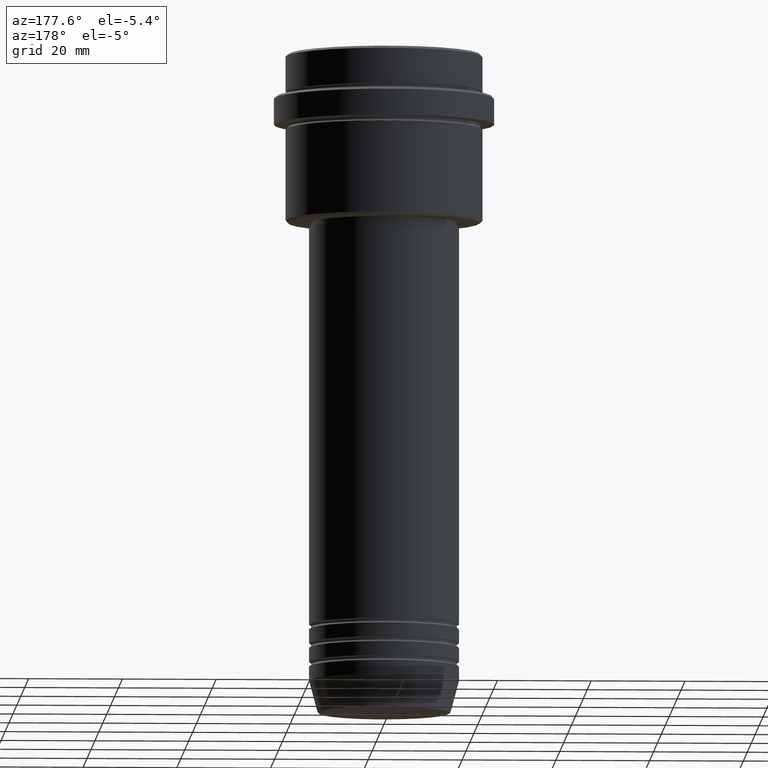
[diagram: clean part render]
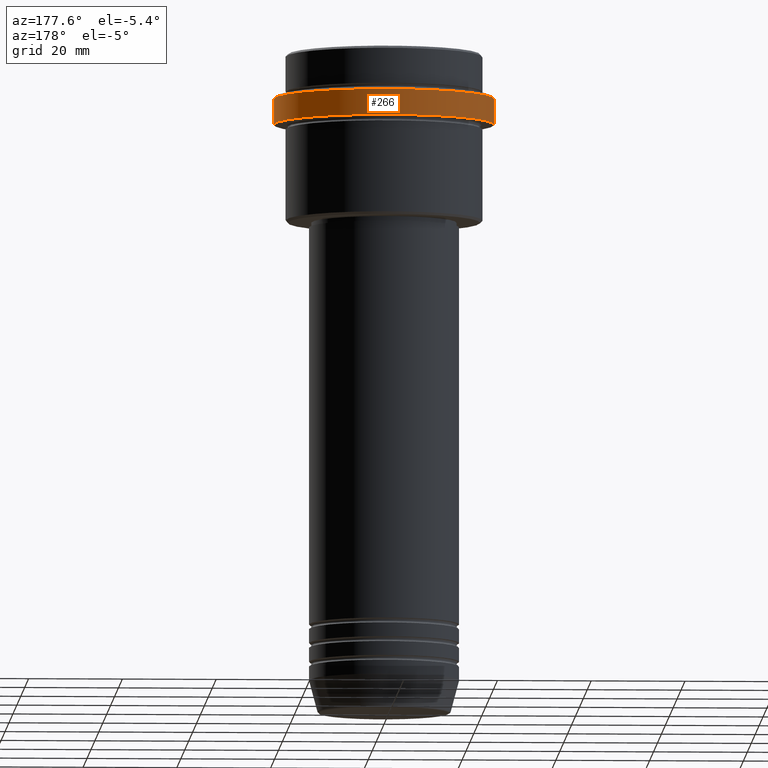
[diagram: same view with one face highlighted and labeled with its STEP entity id]
A machine part, auxiliary view. The second image highlights one B-rep face of the part: STEP entity #266.
In plain terms, the highlighted cylindrical surface (partial cylindrical patch) has radius 23.5 mm, axis along (-0, -0, 1).
Its self-contained STEP definition (entity closure, byte-faithful):
#5 = CARTESIAN_POINT ( 'NONE',  ( -23.50000000000000000, 2.877919977996280320E-15, -9.499999999999985789 ) ) ;
#19 = DIRECTION ( 'NONE',  ( 1.000000000000000000, 0.000000000000000000, 0.000000000000000000 ) ) ;
#20 = ORIENTED_EDGE ( 'NONE', *, *, #359, .T. ) ;
#70 = CIRCLE ( 'NONE', #1151, 23.50000000000000355 ) ;
#125 = DIRECTION ( 'NONE',  ( -0.000000000000000000, -0.000000000000000000, 1.000000000000000000 ) ) ;
#140 = DIRECTION ( 'NONE',  ( -0.000000000000000000, -0.000000000000000000, 1.000000000000000000 ) ) ;
#151 = CARTESIAN_POINT ( 'NONE',  ( 23.50000000000000000, 0.000000000000000000, 0.000000000000000000 ) ) ;
#210 = CIRCLE ( 'NONE', #516, 23.50000000000000000 ) ;
#266 = ADVANCED_FACE ( 'NONE', ( #1286 ), #1293, .T. ) ;
#338 = ORIENTED_EDGE ( 'NONE', *, *, #1224, .T. ) ;
#359 = EDGE_CURVE ( 'NONE', #1378, #1219, #1215, .T. ) ;
#389 = DIRECTION ( 'NONE',  ( 1.000000000000000000, 0.000000000000000000, 0.000000000000000000 ) ) ;
#516 = AXIS2_PLACEMENT_3D ( 'NONE', #896, #552, #1321 ) ;
#552 = DIRECTION ( 'NONE',  ( 0.000000000000000000, 0.000000000000000000, -1.000000000000000000 ) ) ;
#631 = VECTOR ( 'NONE', #140, 1000.000000000000000 ) ;
#658 = VECTOR ( 'NONE', #125, 1000.000000000000000 ) ;
#774 = VERTEX_POINT ( 'NONE', #864 ) ;
#864 = CARTESIAN_POINT ( 'NONE',  ( 23.50000000000000355, 0.000000000000000000, -15.00000000000000000 ) ) ;
#881 = EDGE_CURVE ( 'NONE', #774, #1378, #70, .T. ) ;
#896 = CARTESIAN_POINT ( 'NONE',  ( 0.000000000000000000, 0.000000000000000000, -9.499999999999985789 ) ) ;
#954 = DIRECTION ( 'NONE',  ( -0.000000000000000000, -0.000000000000000000, 1.000000000000000000 ) ) ;
#1007 = CARTESIAN_POINT ( 'NONE',  ( 0.000000000000000000, 0.000000000000000000, -15.00000000000000000 ) ) ;
#1017 = DIRECTION ( 'NONE',  ( -0.000000000000000000, -0.000000000000000000, 1.000000000000000000 ) ) ;
#1037 = CARTESIAN_POINT ( 'NONE',  ( 23.50000000000000000, 0.000000000000000000, -9.499999999999985789 ) ) ;
#1054 = CARTESIAN_POINT ( 'NONE',  ( 0.000000000000000000, 0.000000000000000000, 0.000000000000000000 ) ) ;
#1126 = AXIS2_PLACEMENT_3D ( 'NONE', #1054, #954, #389 ) ;
#1139 = CARTESIAN_POINT ( 'NONE',  ( -23.50000000000000711, 2.877919977996281109E-15, -15.00000000000000000 ) ) ;
#1151 = AXIS2_PLACEMENT_3D ( 'NONE', #1007, #1017, #19 ) ;
#1215 = LINE ( 'NONE', #1239, #631 ) ;
#1219 = VERTEX_POINT ( 'NONE', #5 ) ;
#1224 = EDGE_CURVE ( 'NONE', #1219, #1370, #210, .T. ) ;
#1239 = CARTESIAN_POINT ( 'NONE',  ( -23.50000000000000000, 2.877919977996280320E-15, 0.000000000000000000 ) ) ;
#1257 = LINE ( 'NONE', #151, #658 ) ;
#1275 = ORIENTED_EDGE ( 'NONE', *, *, #881, .T. ) ;
#1286 = FACE_OUTER_BOUND ( 'NONE', #1345, .T. ) ;
#1293 = CYLINDRICAL_SURFACE ( 'NONE', #1126, 23.50000000000000000 ) ;
#1321 = DIRECTION ( 'NONE',  ( 1.000000000000000000, 0.000000000000000000, 0.000000000000000000 ) ) ;
#1334 = ORIENTED_EDGE ( 'NONE', *, *, #1389, .F. ) ;
#1345 = EDGE_LOOP ( 'NONE', ( #1275, #20, #338, #1334 ) ) ;
#1370 = VERTEX_POINT ( 'NONE', #1037 ) ;
#1378 = VERTEX_POINT ( 'NONE', #1139 ) ;
#1389 = EDGE_CURVE ( 'NONE', #774, #1370, #1257, .T. ) ;